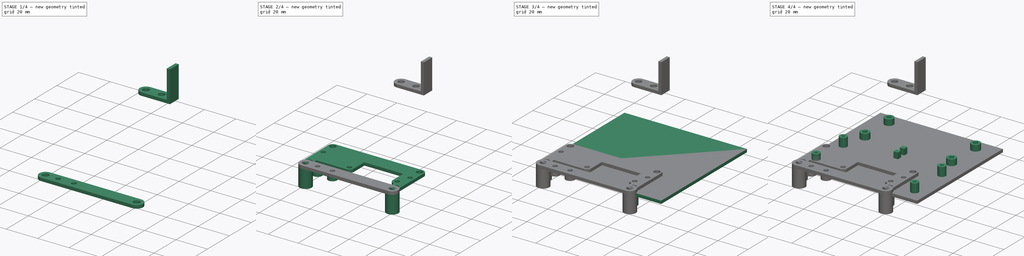
[diagram: build sequence overview — one tinted view per stage of 4, left to right]
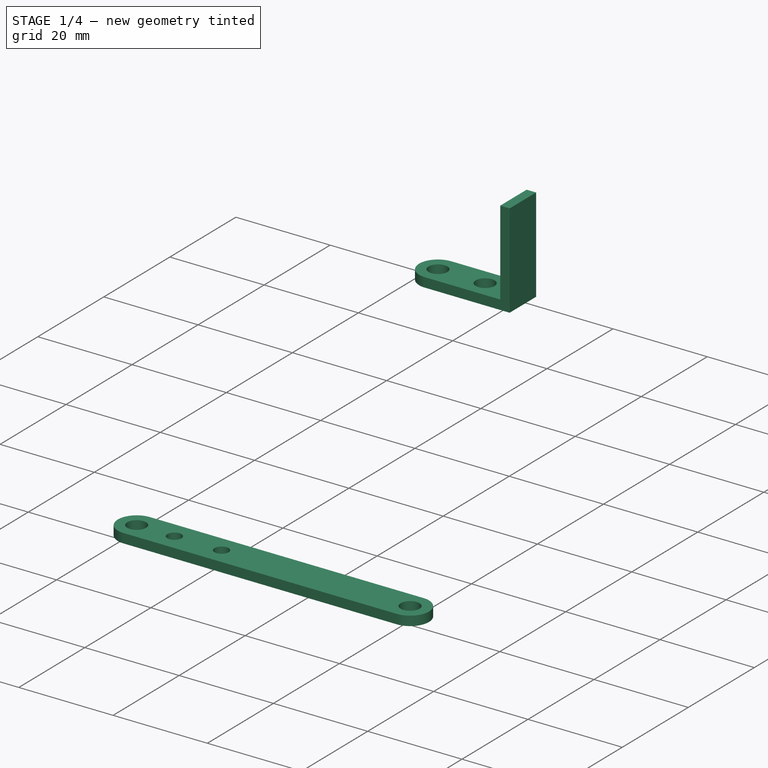
[diagram: stage 1 of 4 — iso view after this stage's code; geometry added in this stage tinted green]
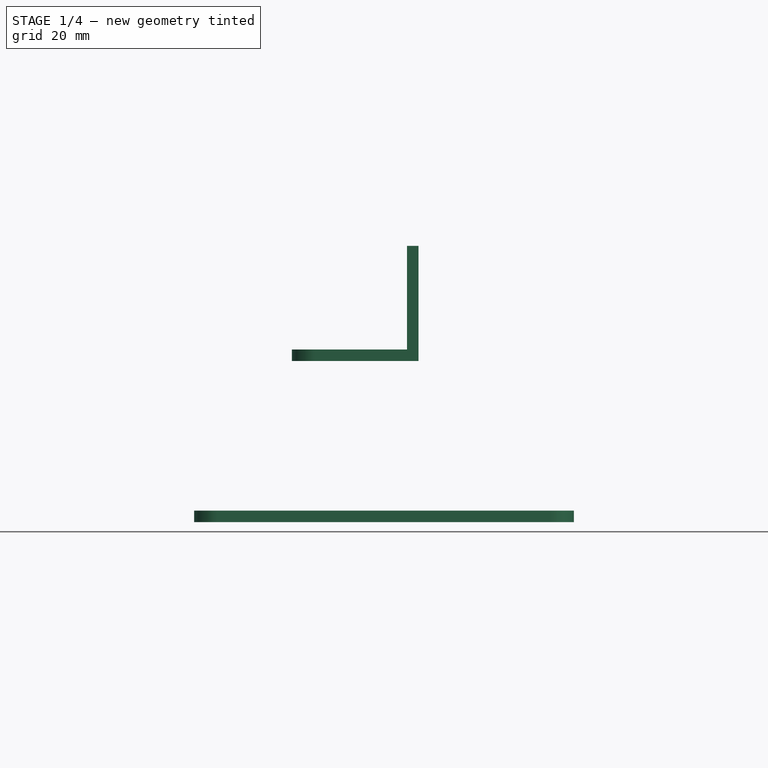
[diagram: stage 1 of 4 — front view after this stage's code; geometry added in this stage tinted green]
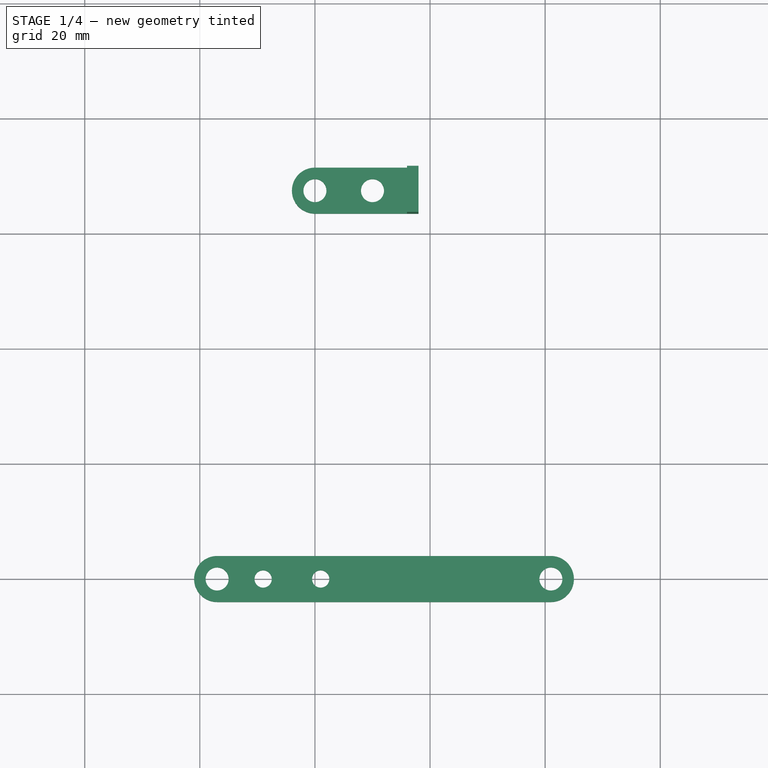
[diagram: stage 1 of 4 — top view after this stage's code; geometry added in this stage tinted green]
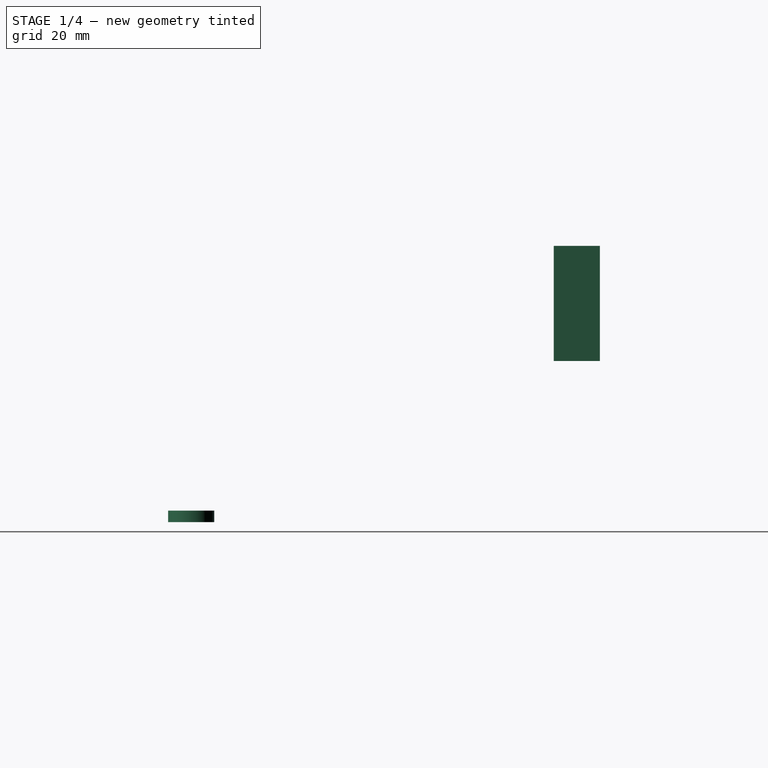
[diagram: stage 1 of 4 — right view after this stage's code; geometry added in this stage tinted green]
FCSTD DOCUMENT  (FreeCAD 1.0R39109 (Git))
Label: Octobox 2W simple
License: All rights reserved
LicenseURL: http://en.wikipedia.org/wiki/All_rights_reserved
objects: Sketcher::SketchObject×13, PartDesign::Pad×13, PartDesign::Body×4
note: 69 computed .brp shape members not serialized (recipe doc carries the construction recipe); baked Part::Feature solids carry a one-line shape summary decoded from their .brp

FEATURE [PartDesign::Body] Body  label="Fan"
  AllowCompound = false
  Group = -> [Sketch,Pad,Sketch019,Pad016,Sketch020,Pad017,Sketch021,Pad018]
  Origin = -> Origin
  Placement = pos=(9,47,12) rot=(0,0,1;0rad)
  Tip = -> Pad018
FEATURE [Sketcher::SketchObject] Sketch022
  ArcFitTolerance = 1e-06
  AttachmentSupport = -> [XY_Plane003]
  FullyConstrained = true
  MakeInternals = false
  MapMode = 5
  sketch-geometry (4):
    g0: Circle CenterX=61 CenterY=0 CenterZ=0 NormalX=0 NormalY=0 NormalZ=1 AngleXU=0 Radius=4
    g1: Circle CenterX=61 CenterY=0 CenterZ=0 NormalX=0 NormalY=0 NormalZ=1 AngleXU=0 Radius=2
    g2: Circle CenterX=3 CenterY=0 CenterZ=0 NormalX=0 NormalY=0 NormalZ=1 AngleXU=0 Radius=4
    g3: Circle CenterX=3 CenterY=0 CenterZ=0 NormalX=0 NormalY=0 NormalZ=1 AngleXU=0 Radius=2
  constraints (10):
    c: Coincident(g1,g0)
    c: Coincident(g3,g2)
    c: Equal(g1,g3)
    c: Equal(g0,g2)
    c: DistanceY(g0,g2) = 0
    c: DistanceX(g2,g0) = 58
    c: DistanceX(g2) = 3
    c: DistanceY(g2) = 0
    c: Radius(g1) = 2
    c: Radius(g0) = 4
FEATURE [Sketcher::SketchObject] Sketch023
  ArcFitTolerance = 1e-06
  AttachmentSupport = -> [XY_Plane003]
  FullyConstrained = true
  MakeInternals = false
  MapMode = 5
  sketch-geometry (8):
    g0: ArcOfCircle CenterX=3 CenterY=0 CenterZ=0 NormalX=0 NormalY=0 NormalZ=1 AngleXU=0 Radius=4 StartAngle=1.5708 EndAngle=4.71239
    g1: ArcOfCircle CenterX=61 CenterY=-2e-16 CenterZ=0 NormalX=0 NormalY=0 NormalZ=1 AngleXU=0 Radius=4 StartAngle=4.71239 EndAngle=7.85398
    g2: LineSegment StartX=3 StartY=4 StartZ=0 EndX=61 EndY=4 EndZ=0
    g3: LineSegment StartX=61 StartY=-4 StartZ=0 EndX=3 EndY=-4 EndZ=0
    g4: Circle CenterX=3 CenterY=0 CenterZ=0 NormalX=0 NormalY=0 NormalZ=1 AngleXU=0 Radius=2
    g5: Circle CenterX=61 CenterY=-2e-16 CenterZ=0 NormalX=0 NormalY=0 NormalZ=1 AngleXU=0 Radius=2
    g6: Circle CenterX=11 CenterY=0 CenterZ=0 NormalX=0 NormalY=0 NormalZ=1 AngleXU=0 Radius=1.5
    g7: Circle CenterX=21 CenterY=0 CenterZ=0 NormalX=0 NormalY=0 NormalZ=1 AngleXU=0 Radius=1.5
  constraints (21):
    c: Horizontal(g2)
    c: Horizontal(g3)
    c: Tangent(g2,g1) = 1.5708
    c: Tangent(g3,g1) = 1.5708
    c: Equal(g1,g0)
    c: Radius(g1) = 4
    c: DistanceX(g0,g1) = 58
    c: Tangent(g2,g0) = 1.5708
    c: Coincident(g3,g0)
    c: DistanceX(g0) = 3
    c: DistanceY(g0) = 0
    c: Coincident(g4,g0)
    c: Coincident(g5,g1)
    c: Equal(g5,g4)
    c: Radius(g5) = 2
    c: PointOnObject(g6,g-1)
    c: PointOnObject(g7,g-1)
    c: Equal(g6,g7)
    c: Radius(g7) = 1.5
    c: DistanceX(g6,g7) = 10
    c: DistanceX(g0,g6) = 8
FEATURE [PartDesign::Pad] Pad020
  Direction = (0,0,1)
  Length = 2
  Length2 = 10
  Profile = -> Sketch023
  ReferenceAxis = -> Sketch023 [N_Axis]
  Suppressed = false
  Type = 0
FEATURE [PartDesign::Body] Body003  label="Xiaomi"
  AllowCompound = false
  Group = -> [Pad020,Sketch022,Pad019,Sketch023,Sketch024,Pad021]
  Origin = -> Origin003
  Placement = pos=(9,64,26) rot=(0,0,1;0rad)
  Tip = -> Pad021
FEATURE [Sketcher::SketchObject] Sketch025
  ArcFitTolerance = 1e-06
  AttachmentOffset = pos=(0,0,28) rot=(0,0,1;0rad)
  AttachmentSupport = -> [XY_Plane004]
  FullyConstrained = true
  MakeInternals = false
  MapMode = 5
  Placement = pos=(0,0,28) rot=(0,0,1;0rad)
  sketch-geometry (6):
    g0: ArcOfCircle CenterX=20 CenterY=67 CenterZ=0 NormalX=0 NormalY=0 NormalZ=1 AngleXU=0 Radius=4 StartAngle=1.5708 EndAngle=4.71239
    g1: LineSegment StartX=20 StartY=71 StartZ=0 EndX=38 EndY=71 EndZ=0
    g2: LineSegment StartX=38 StartY=63 StartZ=0 EndX=20 EndY=63 EndZ=0
    g3: LineSegment StartX=38 StartY=71 StartZ=0 EndX=38 EndY=63 EndZ=0
    g4: Circle CenterX=20 CenterY=67 CenterZ=0 NormalX=0 NormalY=0 NormalZ=1 AngleXU=0 Radius=2
    g5: Circle CenterX=30 CenterY=67 CenterZ=0 NormalX=0 NormalY=0 NormalZ=1 AngleXU=0 Radius=2
  constraints (16):
    c: Horizontal(g1)
    c: Horizontal(g2)
    c: DistanceX(g0) = 20
    c: DistanceY(g0) = 67
    c: Radius(g0) = 4
    c: Tangent(g1,g0) = 1.5708
    c: Tangent(g2,g0) = 1.5708
    c: DistanceX(g-1,g2) = 38
    c: Coincident(g3,g1)
    c: Coincident(g3,g2)
    c: Vertical(g3)
    c: Coincident(g4,g0)
    c: Equal(g4,g5)
    c: Radius(g4) = 2
    c: DistanceY(g5,g0) = 0
    c: DistanceX(g0,g5) = 10
FEATURE [PartDesign::Pad] Pad022
  Direction = (0,0,1)
  Length = 2
  Length2 = 10
  Profile = -> Sketch025
  ReferenceAxis = -> Sketch025 [N_Axis]
  Suppressed = false
  Type = 0
FEATURE [Sketcher::SketchObject] Sketch026
  ArcFitTolerance = 1e-06
  AttachmentOffset = pos=(0,0,-67) rot=(0,0,1;0rad)
  AttachmentSupport = -> [XZ_Plane004]
  FullyConstrained = true
  MakeInternals = false
  MapMode = 5
  Placement = pos=(0,67,-1.49e-14) rot=(1,0,0;1.5708rad)
  sketch-geometry (4):
    g0: LineSegment StartX=38 StartY=30 StartZ=0 EndX=38 EndY=48 EndZ=0
    g1: LineSegment StartX=38 StartY=48 StartZ=0 EndX=36 EndY=48 EndZ=0
    g2: LineSegment StartX=36 StartY=48 StartZ=0 EndX=36 EndY=30 EndZ=0
    g3: LineSegment StartX=36 StartY=30 StartZ=0 EndX=38 EndY=30 EndZ=0
  constraints (12):
    c: Coincident(g0,g1)
    c: Coincident(g1,g2)
    c: Coincident(g2,g3)
    c: Coincident(g3,g0)
    c: Vertical(g0)
    c: Vertical(g2)
    c: Horizontal(g1)
    c: Horizontal(g3)
    c: DistanceX(g1,g1) = 2
    c: DistanceX(g-1,g0) = 38
    c: DistanceY(g0,g0) = 18
    c: DistanceY(g-1,g2) = 30
FEATURE [PartDesign::Pad] Pad023
  BaseFeature = -> Pad022
  Direction = (0,-1,2e-16)
  Length = 8
  Length2 = 10
  Midplane = true
  Profile = -> Sketch026
  ReferenceAxis = -> Sketch026 [N_Axis]
  Suppressed = false
  Type = 0
FEATURE [PartDesign::Body] Body004  label="Post"
  AllowCompound = false
  Group = -> [Sketch025,Pad022,Sketch026,Pad023]
  Origin = -> Origin004
  Placement = pos=(0,-3,0) rot=(0,0,1;0rad)
  Tip = -> Pad023
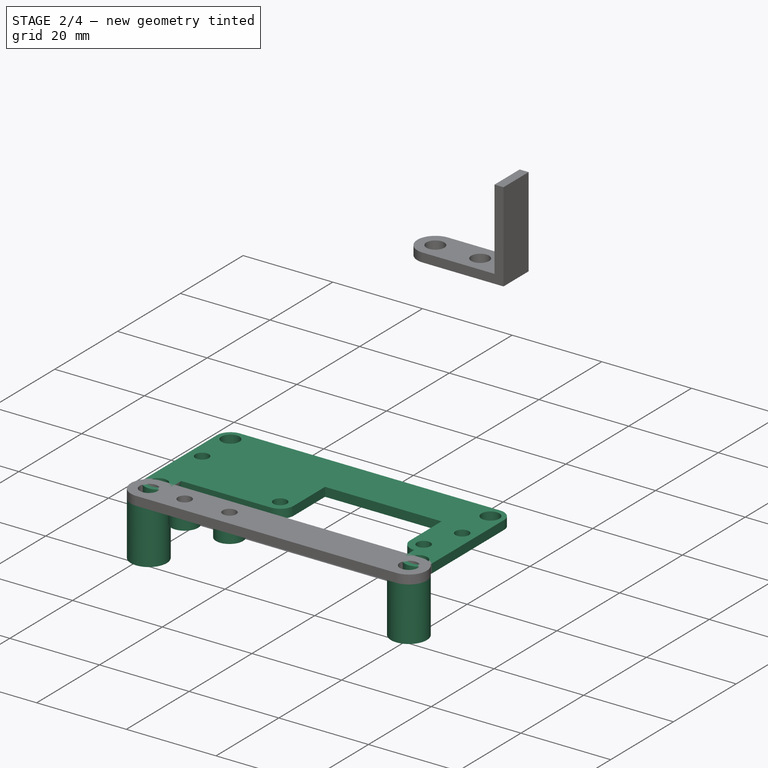
[diagram: stage 2 of 4 — iso view after this stage's code; geometry added in this stage tinted green]
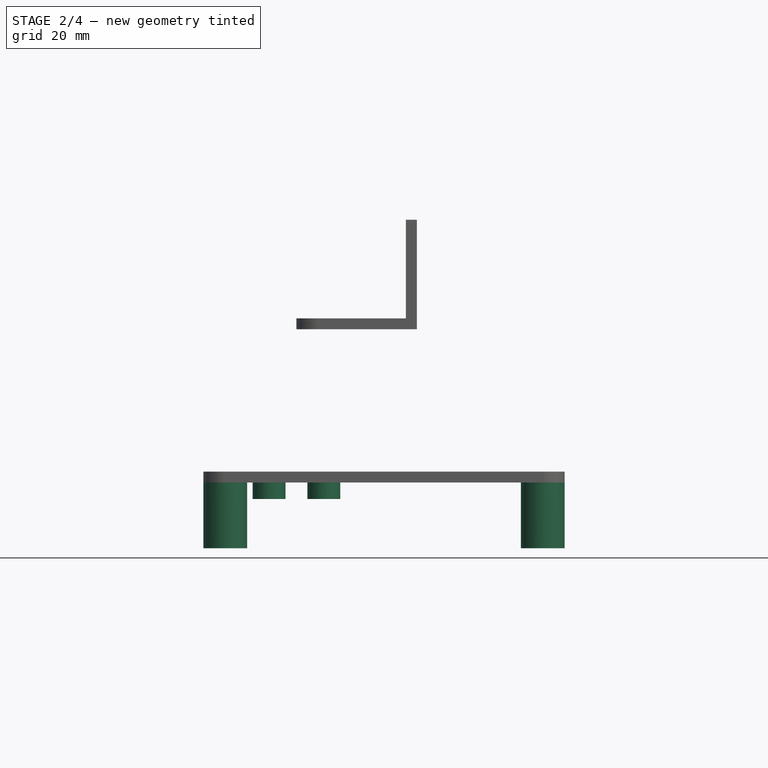
[diagram: stage 2 of 4 — front view after this stage's code; geometry added in this stage tinted green]
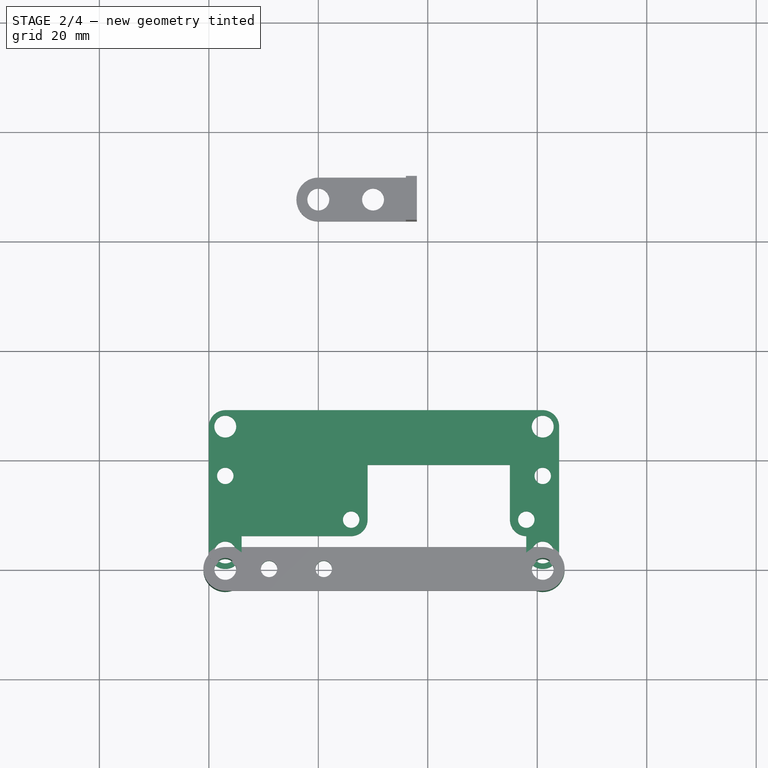
[diagram: stage 2 of 4 — top view after this stage's code; geometry added in this stage tinted green]
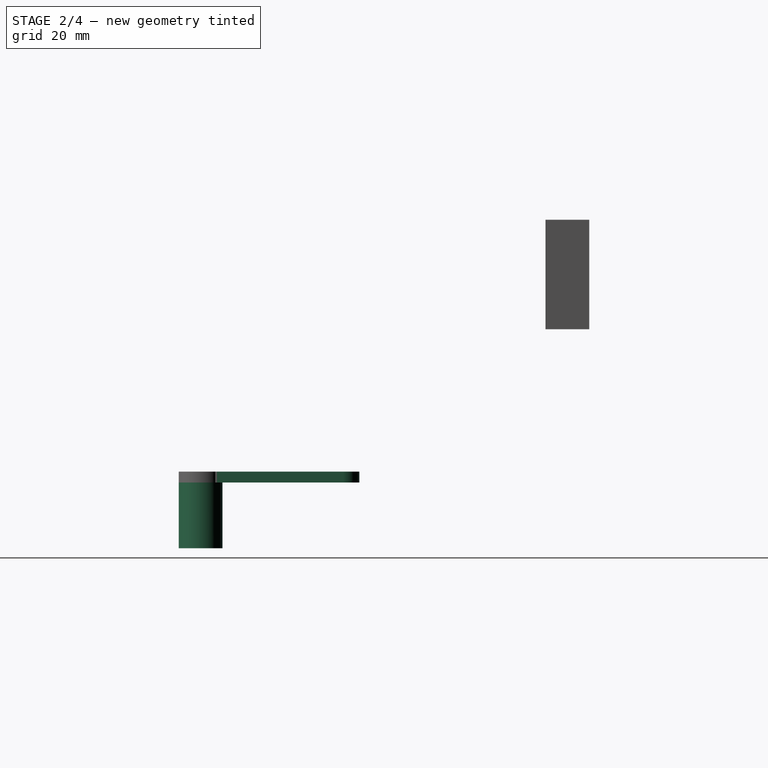
[diagram: stage 2 of 4 — right view after this stage's code; geometry added in this stage tinted green]
FEATURE [PartDesign::Body] Body002  label="Base"
  AllowCompound = false
  Group = -> [Sketch002,Pad002,Sketch003,Pad003,Pad014,Sketch017,Sketch018,Pad015]
  Origin = -> Origin002
  Placement = pos=(0,0,-4) rot=(0,0,1;0rad)
  Tip = -> Pad015
FEATURE [Sketcher::SketchObject] Sketch
  ArcFitTolerance = 1e-06
  AttachmentSupport = -> [XY_Plane]
  FullyConstrained = true
  MakeInternals = false
  MapMode = 5
  sketch-geometry (26):
    g0: LineSegment StartX=0 StartY=26 StartZ=0 EndX=0 EndY=3 EndZ=0
    g1: LineSegment StartX=64 StartY=3 StartZ=0 EndX=64 EndY=26 EndZ=0
    g2: LineSegment StartX=61 StartY=29 StartZ=0 EndX=3 EndY=29 EndZ=0
    g3: ArcOfCircle CenterX=3 CenterY=26 CenterZ=0 NormalX=0 NormalY=0 NormalZ=1 AngleXU=0 Radius=3 StartAngle=1.5708 EndAngle=3.14159
    g4: ArcOfCircle CenterX=3 CenterY=3 CenterZ=0 NormalX=0 NormalY=0 NormalZ=1 AngleXU=0 Radius=3 StartAngle=3.14159 EndAngle=6.28319
    g5: ArcOfCircle CenterX=61 CenterY=3 CenterZ=0 NormalX=0 NormalY=0 NormalZ=1 AngleXU=0 Radius=3 StartAngle=3.14159 EndAngle=6.28319
    g6: ArcOfCircle CenterX=61 CenterY=26 CenterZ=0 NormalX=0 NormalY=0 NormalZ=1 AngleXU=0 Radius=3 StartAngle=1e-16 EndAngle=1.5708
    g7: GeomPoint [constr] X=0 Y=29 Z=0
    g8: Circle CenterX=3 CenterY=3 CenterZ=0 NormalX=0 NormalY=0 NormalZ=1 AngleXU=0 Radius=2
    g9: Circle CenterX=3 CenterY=26 CenterZ=0 NormalX=0 NormalY=0 NormalZ=1 AngleXU=0 Radius=2
    g10: Circle CenterX=61 CenterY=26 CenterZ=0 NormalX=0 NormalY=0 NormalZ=1 AngleXU=0 Radius=2
    g11: Circle CenterX=61 CenterY=3 CenterZ=0 NormalX=0 NormalY=0 NormalZ=1 AngleXU=0 Radius=2
    g12: LineSegment StartX=6 StartY=6 StartZ=0 EndX=6 EndY=3 EndZ=0
    g13: LineSegment StartX=58 StartY=3 StartZ=0 EndX=58 EndY=6 EndZ=0
    g14: LineSegment [constr] StartX=26 StartY=9 StartZ=0 EndX=58 EndY=9 EndZ=0
    g15: Circle CenterX=26 CenterY=9 CenterZ=0 NormalX=0 NormalY=0 NormalZ=1 AngleXU=0 Radius=1.5
    g16: Circle CenterX=58 CenterY=9 CenterZ=0 NormalX=0 NormalY=0 NormalZ=1 AngleXU=0 Radius=1.5
    g17: LineSegment [constr] StartX=3 StartY=3 StartZ=0 EndX=61 EndY=3 EndZ=0
    g18: LineSegment StartX=6 StartY=6 StartZ=0 EndX=26 EndY=6 EndZ=0
    g19: LineSegment StartX=29 StartY=9 StartZ=0 EndX=29 EndY=19 EndZ=0
    g20: LineSegment StartX=29 StartY=19 StartZ=0 EndX=55 EndY=19 EndZ=0
    g21: LineSegment StartX=55 StartY=19 StartZ=0 EndX=55 EndY=9 EndZ=0
    g22: ArcOfCircle CenterX=26 CenterY=9 CenterZ=0 NormalX=0 NormalY=0 NormalZ=1 AngleXU=0 Radius=3 StartAngle=4.71239 EndAngle=6.28319
    g23: ArcOfCircle CenterX=58 CenterY=9 CenterZ=0 NormalX=0 NormalY=0 NormalZ=1 AngleXU=0 Radius=3 StartAngle=3.14159 EndAngle=4.71239
    g24: Circle CenterX=3 CenterY=17 CenterZ=0 NormalX=0 NormalY=0 NormalZ=1 AngleXU=0 Radius=1.5
    g25: Circle CenterX=61 CenterY=17 CenterZ=0 NormalX=0 NormalY=0 NormalZ=1 AngleXU=0 Radius=1.5
  constraints (64):
    c: Tangent(g0,g3) = -1.5708
    c: Tangent(g0,g4) = -1.5708
    c: Tangent(g1,g5) = -1.5708
    c: Tangent(g1,g6) = -1.5708
    c: Tangent(g2,g6) = -1.5708
    c: Tangent(g2,g3) = -1.5708
    c: Vertical(g0)
    c: Vertical(g1)
    c: Horizontal(g2)
    c: Equal(g3,g4)
    c: Equal(g4,g5)
    c: Equal(g5,g6)
    c: PointOnObject(g7,g0)
    c: PointOnObject(g7,g2)
    c: DistanceX(g4,g5) = 58
    c: DistanceY(g5,g6) = 23
    c: Radius(g6) = 3
    c: DistanceX(g4) = 3
    c: DistanceY(g4) = 3
    c: Coincident(g8,g4)
    c: Coincident(g9,g3)
    c: Coincident(g10,g6)
    c: Coincident(g11,g5)
    c: Equal(g10,g11)
    c: Equal(g11,g8)
    c: Equal(g8,g9)
    c: Radius(g10) = 2
    c: Vertical(g12)
    c: Vertical(g13)
    c: Tangent(g13,g5) = 1.5708
    c: Tangent(g12,g4) = 1.5708
    c: DistanceY(g-1,g12) = 6
    c: Horizontal(g14)
    c: DistanceX(g14,g14) = 32
    c: Coincident(g15,g14)
    c: Coincident(g16,g14)
    c: Equal(g16,g15)
    c: Radius(g16) = 1.5
    c: Coincident(g17,g4)
    c: Coincident(g17,g5)
    c: Horizontal(g17)
    c: DistanceY(g14) = 9
    c: Coincident(g18,g12)
    c: Horizontal(g18)
    c: Coincident(g19,g20)
    c: Horizontal(g20)
    c: Coincident(g20,g21)
    c: Vertical(g21)
    c: Vertical(g19)
    c: Coincident(g22,g14)
    c: Coincident(g23,g14)
    c: DistanceY(g13,g12) = 0
    c: DistanceY(g19,g19) = 10
    c: Coincident(g23,g13)
    c: Tangent(g22,g19) = -1.5708
    c: Tangent(g18,g22) = -1.5708
    c: Tangent(g21,g23) = -1.5708
    c: Equal(g23,g22)
    c: DistanceX(g3,g24) = 0
    c: DistanceX(g6,g25) = 0
    c: DistanceY(g24,g25) = 0
    c: Equal(g24,g25)
    c: Radius(g25) = 1.5
    c: DistanceY(g-1,g24) = 17
FEATURE [PartDesign::Pad] Pad
  Direction = (0,0,1)
  Length = 2
  Length2 = 10
  Profile = -> Sketch
  ReferenceAxis = -> Sketch [N_Axis]
  Suppressed = false
  Type = 0
FEATURE [PartDesign::Pad] Pad019
  BaseFeature = -> Pad020
  Direction = (0,0,1)
  Length = 12
  Length2 = 10
  Profile = -> Sketch022
  ReferenceAxis = -> Sketch022 [N_Axis]
  Reversed = true
  Suppressed = false
  Type = 0
FEATURE [Sketcher::SketchObject] Sketch024
  ArcFitTolerance = 1e-06
  AttachmentSupport = -> [XY_Plane003]
  FullyConstrained = true
  MakeInternals = false
  MapMode = 5
  sketch-geometry (4):
    g0: Circle CenterX=11 CenterY=0 CenterZ=0 NormalX=0 NormalY=0 NormalZ=1 AngleXU=0 Radius=3
    g1: Circle CenterX=21 CenterY=0 CenterZ=0 NormalX=0 NormalY=0 NormalZ=1 AngleXU=0 Radius=3
    g2: Circle CenterX=11 CenterY=0 CenterZ=0 NormalX=0 NormalY=0 NormalZ=1 AngleXU=0 Radius=1.5
    g3: Circle CenterX=21 CenterY=0 CenterZ=0 NormalX=0 NormalY=0 NormalZ=1 AngleXU=0 Radius=1.5
  constraints (10):
    c: PointOnObject(g0,g-1)
    c: PointOnObject(g1,g-1)
    c: Coincident(g2,g0)
    c: Coincident(g3,g1)
    c: Equal(g0,g1)
    c: Equal(g2,g3)
    c: Radius(g3) = 1.5
    c: Radius(g0) = 3
    c: DistanceX(g0,g1) = 10
    c: DistanceX(g-1,g0) = 11
FEATURE [PartDesign::Pad] Pad021
  BaseFeature = -> Pad019
  Direction = (0,0,1)
  Length = 3
  Length2 = 10
  Profile = -> Sketch024
  ReferenceAxis = -> Sketch024 [N_Axis]
  Reversed = true
  Suppressed = false
  Type = 0
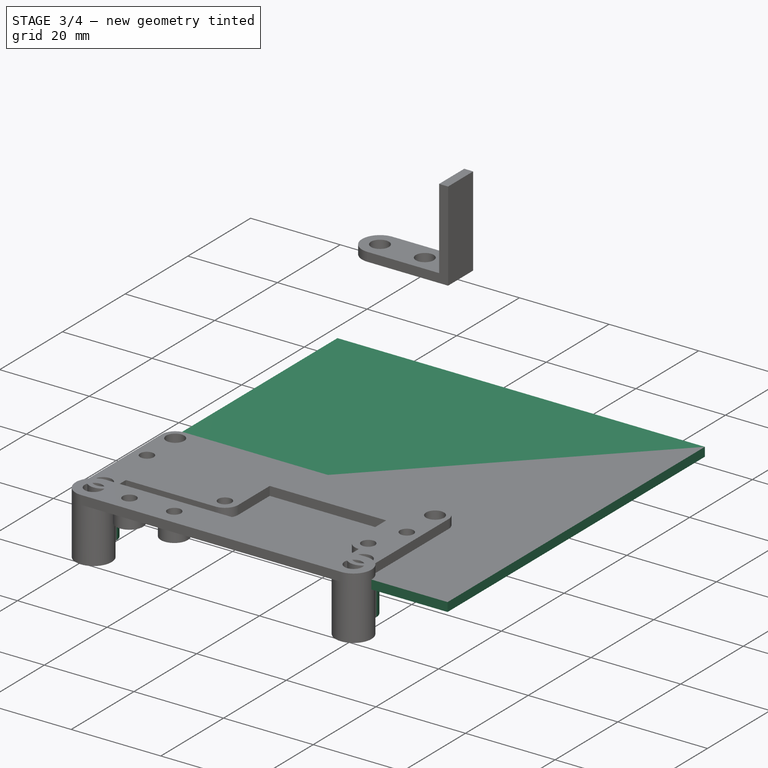
[diagram: stage 3 of 4 — iso view after this stage's code; geometry added in this stage tinted green]
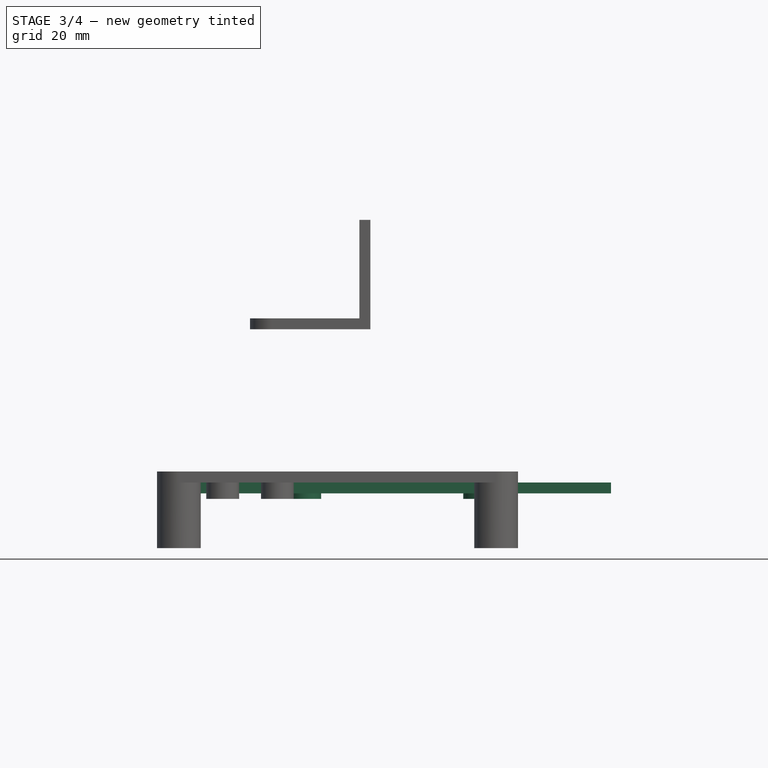
[diagram: stage 3 of 4 — front view after this stage's code; geometry added in this stage tinted green]
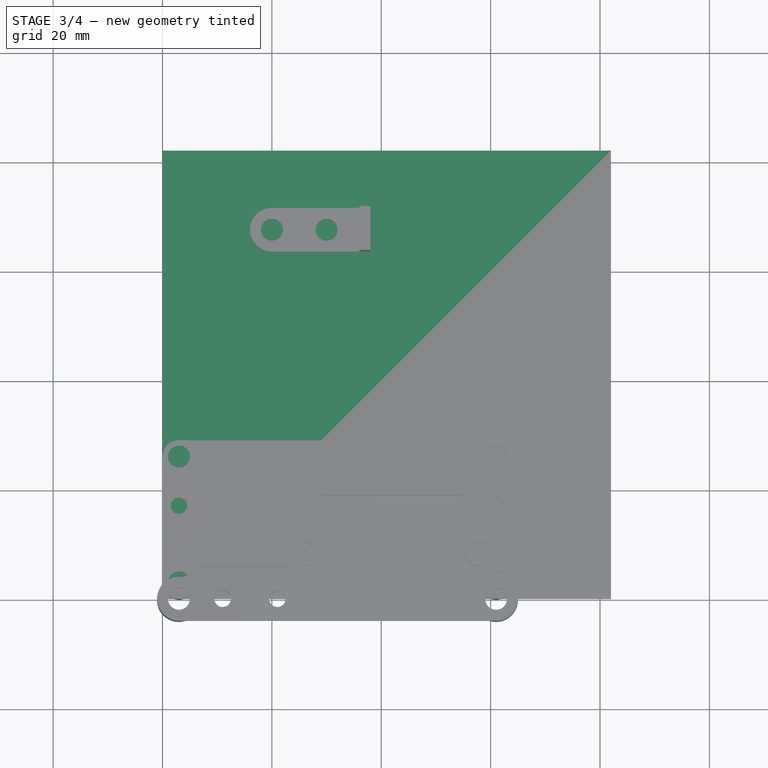
[diagram: stage 3 of 4 — top view after this stage's code; geometry added in this stage tinted green]
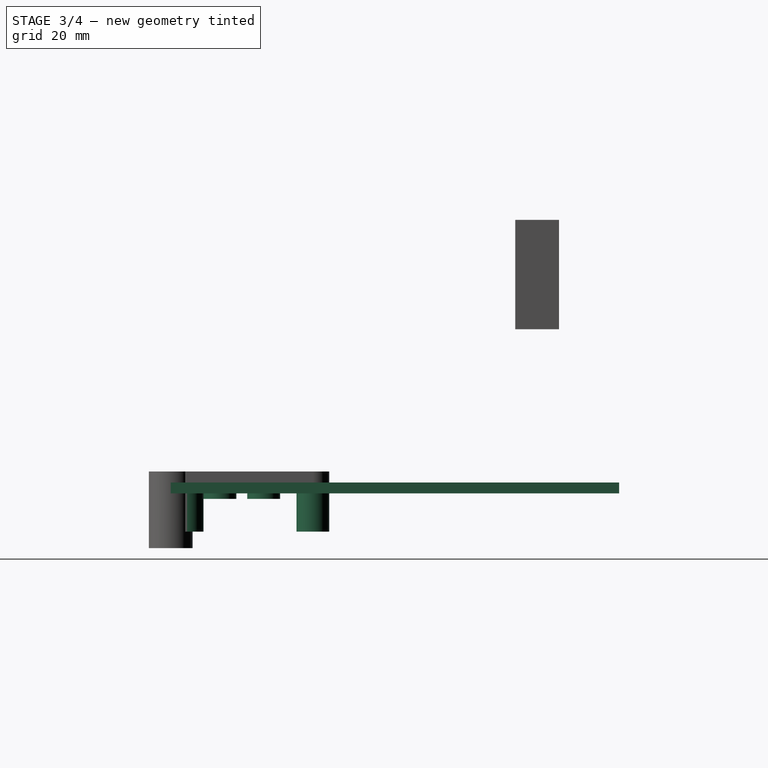
[diagram: stage 3 of 4 — right view after this stage's code; geometry added in this stage tinted green]
FEATURE [Sketcher::SketchObject] Sketch002
  ArcFitTolerance = 0
  AttachmentSupport = -> [XY_Plane002]
  FullyConstrained = true
  MakeInternals = false
  MapMode = 5
  sketch-geometry (4):
    g0: LineSegment StartX=0 StartY=82 StartZ=0 EndX=82 EndY=82 EndZ=0
    g1: LineSegment StartX=82 StartY=82 StartZ=0 EndX=82 EndY=0 EndZ=0
    g2: LineSegment StartX=82 StartY=0 StartZ=0 EndX=0 EndY=0 EndZ=0
    g3: LineSegment StartX=0 StartY=0 StartZ=0 EndX=0 EndY=82 EndZ=0
  constraints (12):
    c: Coincident(g0,g1)
    c: Coincident(g1,g2)
    c: Coincident(g2,g3)
    c: Coincident(g3,g0)
    c: Horizontal(g0)
    c: Horizontal(g2)
    c: Vertical(g1)
    c: Vertical(g3)
    c: DistanceX(g2) = 0
    c: DistanceY(g2) = 0
    c: DistanceX(g2,g2) = 82
    c: DistanceY(g1,g1) = 82
FEATURE [PartDesign::Pad] Pad002
  Direction = (0,0,1)
  Length = 2
  Length2 = 10
  Profile = -> Sketch002
  ReferenceAxis = -> Sketch002 [N_Axis]
  Reversed = true
  Suppressed = false
  Type = 0
FEATURE [Sketcher::SketchObject] Sketch019
  ArcFitTolerance = 1e-06
  AttachmentSupport = -> [XY_Plane]
  FullyConstrained = true
  MakeInternals = false
  MapMode = 5
  sketch-geometry (9):
    g0: LineSegment [constr] StartX=26 StartY=9 StartZ=0 EndX=58 EndY=9 EndZ=0
    g1: Circle CenterX=26 CenterY=9 CenterZ=0 NormalX=0 NormalY=0 NormalZ=1 AngleXU=0 Radius=1.5
    g2: Circle CenterX=58 CenterY=9 CenterZ=0 NormalX=0 NormalY=0 NormalZ=1 AngleXU=0 Radius=1.5
    g3: Circle CenterX=26 CenterY=9 CenterZ=0 NormalX=0 NormalY=0 NormalZ=1 AngleXU=0 Radius=3
    g4: Circle CenterX=58 CenterY=9 CenterZ=0 NormalX=0 NormalY=0 NormalZ=1 AngleXU=0 Radius=3
    g5: Circle CenterX=3 CenterY=17 CenterZ=0 NormalX=0 NormalY=0 NormalZ=1 AngleXU=0 Radius=3
    g6: Circle CenterX=61 CenterY=17 CenterZ=0 NormalX=0 NormalY=0 NormalZ=1 AngleXU=0 Radius=3
    g7: Circle CenterX=61 CenterY=17 CenterZ=0 NormalX=0 NormalY=0 NormalZ=1 AngleXU=0 Radius=1.5
    g8: Circle CenterX=3 CenterY=17 CenterZ=0 NormalX=0 NormalY=0 NormalZ=1 AngleXU=0 Radius=1.5
  constraints (22):
    c: Horizontal(g0)
    c: Coincident(g1,g0)
    c: Coincident(g2,g0)
    c: Equal(g1,g2)
    c: Radius(g2) = 1.5
    c: DistanceX(g0,g0) = 32
    c: DistanceX(g0) = 26
    c: DistanceY(g0) = 9
    c: Coincident(g3,g0)
    c: Coincident(g4,g0)
    c: Equal(g4,g3)
    c: Radius(g4) = 3
    c: Coincident(g7,g6)
    c: Coincident(g8,g5)
    c: DistanceY(g6,g5) = 0
    c: DistanceY(g-1,g5) = 17
    c: DistanceX(g-1,g5) = 3
    c: DistanceX(g5,g6) = 58
    c: Equal(g8,g7)
    c: Equal(g5,g6)
    c: Radius(g8) = 1.5
    c: Radius(g5) = 3
FEATURE [PartDesign::Pad] Pad016
  BaseFeature = -> Pad
  Direction = (0,0,1)
  Length = 3
  Length2 = 10
  Profile = -> Sketch019
  ReferenceAxis = -> Sketch019 [N_Axis]
  Reversed = true
  Suppressed = false
  Type = 0
FEATURE [Sketcher::SketchObject] Sketch020
  ArcFitTolerance = 1e-06
  AttachmentSupport = -> [XY_Plane]
  FullyConstrained = true
  MakeInternals = false
  MapMode = 5
  sketch-geometry (12):
    g0: LineSegment [constr] StartX=3 StartY=26 StartZ=0 EndX=3 EndY=3 EndZ=0
    g1: LineSegment [constr] StartX=3 StartY=3 StartZ=0 EndX=61 EndY=3 EndZ=0
    g2: LineSegment [constr] StartX=61 StartY=3 StartZ=0 EndX=61 EndY=26 EndZ=0
    g3: LineSegment [constr] StartX=61 StartY=26 StartZ=0 EndX=3 EndY=26 EndZ=0
    g4: Circle CenterX=3 CenterY=26 CenterZ=0 NormalX=0 NormalY=0 NormalZ=1 AngleXU=0 Radius=3
    g5: Circle CenterX=3 CenterY=26 CenterZ=0 NormalX=0 NormalY=0 NormalZ=1 AngleXU=0 Radius=2
    g6: Circle CenterX=61 CenterY=26 CenterZ=0 NormalX=0 NormalY=0 NormalZ=1 AngleXU=0 Radius=3
    g7: Circle CenterX=61 CenterY=26 CenterZ=0 NormalX=0 NormalY=0 NormalZ=1 AngleXU=0 Radius=2
    g8: Circle CenterX=3 CenterY=3 CenterZ=0 NormalX=0 NormalY=0 NormalZ=1 AngleXU=0 Radius=3
    g9: Circle CenterX=3 CenterY=3 CenterZ=0 NormalX=0 NormalY=0 NormalZ=1 AngleXU=0 Radius=2
    g10: Circle CenterX=61 CenterY=3 CenterZ=0 NormalX=0 NormalY=0 NormalZ=1 AngleXU=0 Radius=3
    g11: Circle CenterX=61 CenterY=3 CenterZ=0 NormalX=0 NormalY=0 NormalZ=1 AngleXU=0 Radius=2
  constraints (28):
    c: Coincident(g0,g1)
    c: Coincident(g1,g2)
    c: Coincident(g2,g3)
    c: Coincident(g3,g0)
    c: Vertical(g0)
    c: Vertical(g2)
    c: Horizontal(g1)
    c: Horizontal(g3)
    c: DistanceX(g3,g3) = 58
    c: DistanceY(g0,g0) = 23
    c: DistanceX(g0) = 3
    c: DistanceY(g0) = 3
    c: Coincident(g4,g0)
    c: Coincident(g5,g0)
    c: Coincident(g6,g2)
    c: Coincident(g7,g2)
    c: Coincident(g8,g0)
    c: Coincident(g9,g0)
    c: Coincident(g10,g1)
    c: Coincident(g11,g1)
    c: Equal(g11,g7)
    c: Equal(g7,g5)
    c: Equal(g5,g9)
    c: Radius(g7) = 2
    c: Equal(g6,g4)
    c: Equal(g4,g8)
    c: Equal(g8,g10)
    c: Radius(g6) = 3
FEATURE [PartDesign::Pad] Pad017
  BaseFeature = -> Pad016
  Direction = (0,0,1)
  Length = 9
  Length2 = 10
  Profile = -> Sketch020
  ReferenceAxis = -> Sketch020 [N_Axis]
  Reversed = true
  Suppressed = false
  Type = 0
FEATURE [Sketcher::SketchObject] Sketch021
  ArcFitTolerance = 1e-06
  AttachmentSupport = -> [XY_Plane]
  FullyConstrained = true
  MakeInternals = false
  MapMode = 5
  sketch-geometry (21):
    g0: LineSegment [constr] StartX=3 StartY=26 StartZ=0 EndX=61 EndY=26 EndZ=0
    g1: ArcOfCircle CenterX=3 CenterY=26 CenterZ=0 NormalX=0 NormalY=0 NormalZ=1 AngleXU=0 Radius=3 StartAngle=1.5708 EndAngle=3.14159
    g2: ArcOfCircle CenterX=61 CenterY=26 CenterZ=0 NormalX=0 NormalY=0 NormalZ=1 AngleXU=0 Radius=3 StartAngle=-4.867e-13 EndAngle=1.5708
    g3: LineSegment StartX=61 StartY=29 StartZ=0 EndX=3 EndY=29 EndZ=0
    g4: Circle CenterX=3 CenterY=26 CenterZ=0 NormalX=0 NormalY=0 NormalZ=1 AngleXU=0 Radius=2
    g5: Circle CenterX=61 CenterY=26 CenterZ=0 NormalX=0 NormalY=0 NormalZ=1 AngleXU=0 Radius=2
    g6: ArcOfCircle CenterX=3 CenterY=3 CenterZ=0 NormalX=0 NormalY=0 NormalZ=1 AngleXU=0 Radius=3 StartAngle=3.14159 EndAngle=7.85398
    g7: ArcOfCircle CenterX=61 CenterY=3 CenterZ=0 NormalX=0 NormalY=0 NormalZ=1 AngleXU=0 Radius=3 StartAngle=1.5708 EndAngle=6.28319
    g8: LineSegment StartX=6 StartY=23 StartZ=0 EndX=58 EndY=23 EndZ=0
    g9: LineSegment StartX=0 StartY=26 StartZ=0 EndX=0 EndY=3 EndZ=0
    g10: LineSegment StartX=64 StartY=26 StartZ=0 EndX=64 EndY=3 EndZ=0
    g11: Circle CenterX=3 CenterY=3 CenterZ=0 NormalX=0 NormalY=0 NormalZ=1 AngleXU=0 Radius=2
    g12: Circle CenterX=61 CenterY=3 CenterZ=0 NormalX=0 NormalY=0 NormalZ=1 AngleXU=0 Radius=2
    g13: LineSegment StartX=3 StartY=14 StartZ=0 EndX=3 EndY=6 EndZ=0
    g14: LineSegment StartX=61 StartY=6 StartZ=0 EndX=61 EndY=14 EndZ=0
    g15: Circle CenterX=3 CenterY=17 CenterZ=0 NormalX=0 NormalY=0 NormalZ=1 AngleXU=0 Radius=1.5
    g16: Circle CenterX=61 CenterY=17 CenterZ=0 NormalX=0 NormalY=0 NormalZ=1 AngleXU=0 Radius=1.5
    g17: ArcOfCircle CenterX=3 CenterY=17 CenterZ=0 NormalX=0 NormalY=0 NormalZ=1 AngleXU=0 Radius=3 StartAngle=4.71239 EndAngle=6.28319
    g18: ArcOfCircle CenterX=61 CenterY=17 CenterZ=0 NormalX=0 NormalY=0 NormalZ=1 AngleXU=0 Radius=3 StartAngle=3.14159 EndAngle=4.71239
    g19: LineSegment StartX=58 StartY=23 StartZ=0 EndX=58 EndY=17 EndZ=0
    g20: LineSegment StartX=6 StartY=17 StartZ=0 EndX=6 EndY=23 EndZ=0
  constraints (54):
    c: Horizontal(g0)
    c: Coincident(g1,g0)
    c: Coincident(g2,g0)
    c: Horizontal(g3)
    c: DistanceX(g0,g0) = 58
    c: Radius(g1) = 3
    c: DistanceX(g0) = 3
    c: DistanceY(g0) = 26
    c: Coincident(g4,g0)
    c: Coincident(g5,g0)
    c: Equal(g4,g5)
    c: Radius(g4) = 2
    c: Horizontal(g8)
    c: Vertical(g9)
    c: Vertical(g10)
    c: Equal(g6,g7)
    c: Equal(g7,g2)
    c: DistanceY(g7,g6) = 0
    c: Tangent(g9,g6) = -1.5708
    c: Tangent(g10,g7) = 1.5708
    c: Tangent(g3,g1) = -1.5708
    c: Tangent(g10,g2) = 1.5708
    c: Tangent(g9,g1) = -1.5708
    c: DistanceY(g6,g0) = 23
    c: DistanceY(g8,g0) = 3
    c: Coincident(g11,g6)
    c: Coincident(g12,g7)
    c: Equal(g11,g12)
    c: Equal(g12,g5)
    c: Tangent(g3,g2) = -1.5708
    c: Coincident(g13,g6)
    c: Coincident(g14,g7)
    c: Vertical(g13)
    c: Vertical(g14)
    c: DistanceX(g6,g6) = 0
    c: DistanceX(g7,g7) = 0
    c: DistanceY(g16,g15) = 0
    c: Equal(g15,g16)
    c: Radius(g16) = 1.5
    c: DistanceX(g15,g0) = 0
    c: DistanceX(g0,g16) = 0
    c: DistanceY(g16,g0) = 9
    c: Coincident(g17,g15)
    c: Coincident(g17,g13)
    c: Coincident(g18,g16)
    c: Coincident(g18,g14)
    c: Equal(g17,g18)
    c: Equal(g18,g2)
    c: Coincident(g19,g8)
    c: Coincident(g20,g8)
    c: Vertical(g20)
    c: Vertical(g19)
    c: Tangent(g20,g17) = -1.5708
    c: Tangent(g19,g18) = -1.5708
FEATURE [PartDesign::Pad] Pad018
  BaseFeature = -> Pad017
  Direction = (0,0,1)
  Length = 2
  Length2 = 10
  Profile = -> Sketch021
  ReferenceAxis = -> Sketch021 [N_Axis]
  Reversed = true
  Suppressed = false
  Type = 0
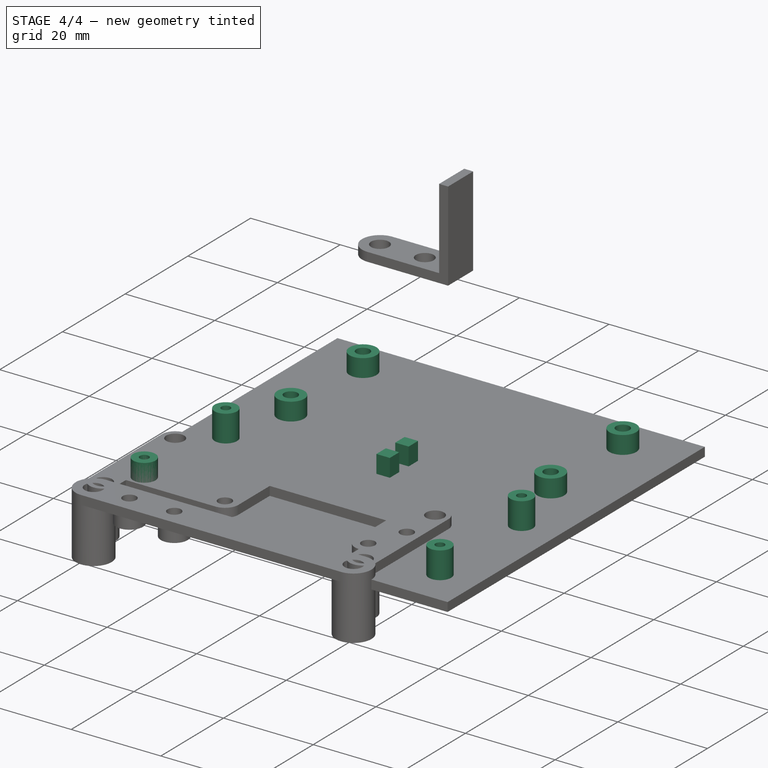
[diagram: stage 4 of 4 — iso view after this stage's code; geometry added in this stage tinted green]
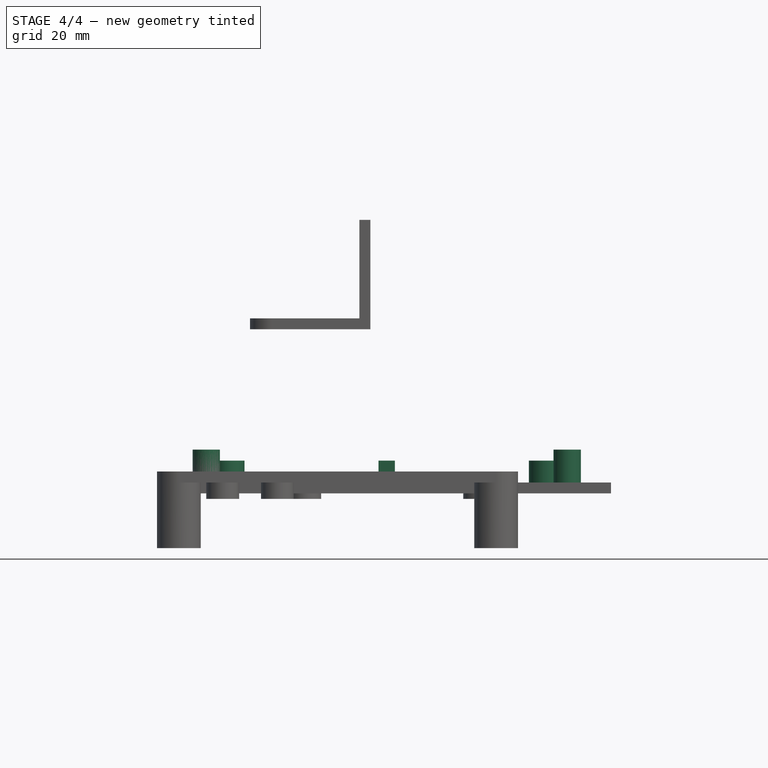
[diagram: stage 4 of 4 — front view after this stage's code; geometry added in this stage tinted green]
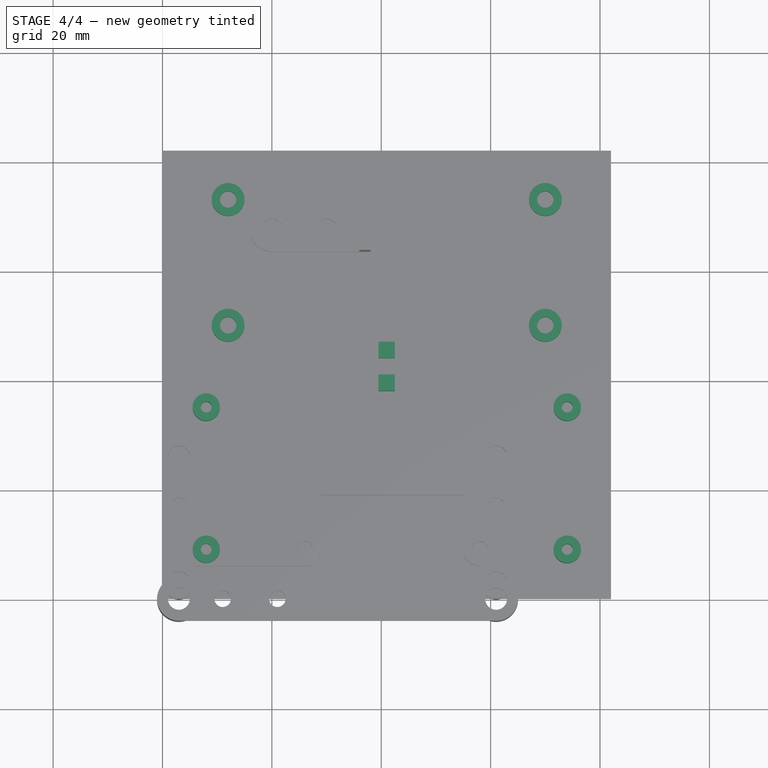
[diagram: stage 4 of 4 — top view after this stage's code; geometry added in this stage tinted green]
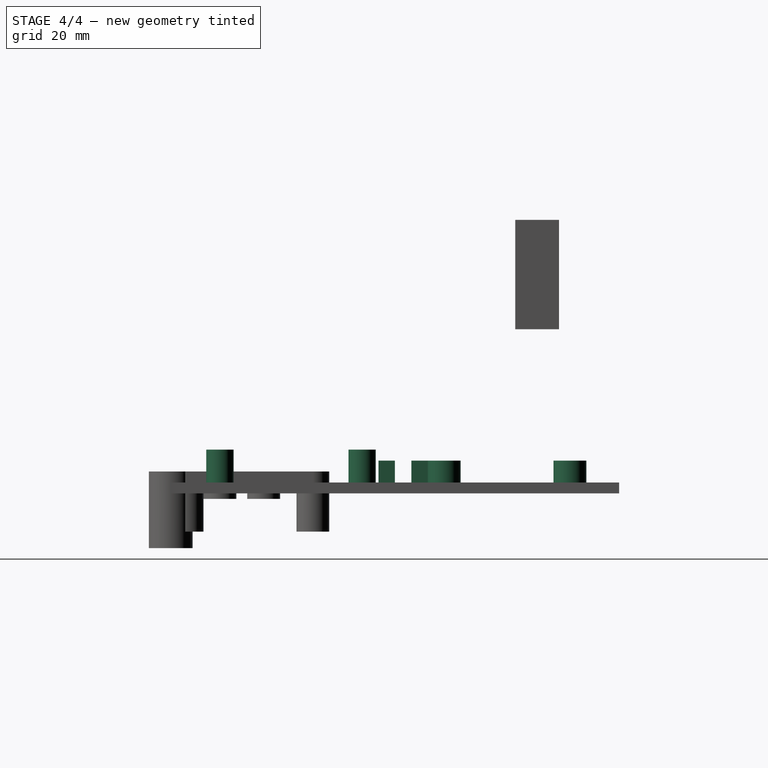
[diagram: stage 4 of 4 — right view after this stage's code; geometry added in this stage tinted green]
FEATURE [Sketcher::SketchObject] Sketch003
  ArcFitTolerance = 0
  AttachmentSupport = -> [XY_Plane002]
  FullyConstrained = true
  MakeInternals = false
  MapMode = 5
  sketch-geometry (21):
    g0: LineSegment [constr] StartX=12 StartY=73 StartZ=0 EndX=70 EndY=73 EndZ=0
    g1: LineSegment [constr] StartX=70 StartY=73 StartZ=0 EndX=70 EndY=50 EndZ=0
    g2: LineSegment [constr] StartX=70 StartY=50 StartZ=0 EndX=12 EndY=50 EndZ=0
    g3: LineSegment [constr] StartX=12 StartY=50 StartZ=0 EndX=12 EndY=73 EndZ=0
    g4: Circle CenterX=12 CenterY=73 CenterZ=0 NormalX=0 NormalY=0 NormalZ=1 AngleXU=0 Radius=3
    g5: Circle CenterX=70 CenterY=73 CenterZ=0 NormalX=0 NormalY=0 NormalZ=1 AngleXU=0 Radius=3
    g6: Circle CenterX=70 CenterY=50 CenterZ=0 NormalX=0 NormalY=0 NormalZ=1 AngleXU=0 Radius=3
    g7: Circle CenterX=12 CenterY=50 CenterZ=0 NormalX=0 NormalY=0 NormalZ=1 AngleXU=0 Radius=3
    g8: LineSegment [constr] StartX=82 StartY=82 StartZ=0 EndX=0 EndY=82 EndZ=0
    g9: LineSegment [constr] StartX=0 StartY=82 StartZ=0 EndX=0 EndY=0 EndZ=0
    g10: LineSegment [constr] StartX=0 StartY=0 StartZ=0 EndX=82 EndY=0 EndZ=0
    g11: LineSegment [constr] StartX=82 StartY=0 StartZ=0 EndX=82 EndY=82 EndZ=0
    g12: LineSegment [constr] StartX=12 StartY=73 StartZ=0 EndX=0 EndY=82 EndZ=0
    g13: LineSegment [constr] StartX=70 StartY=73 StartZ=0 EndX=82 EndY=82 EndZ=0
    g14: LineSegment [constr] StartX=41 StartY=35 StartZ=0 EndX=41 EndY=9 EndZ=0
    g15: Circle [constr] CenterX=41 CenterY=9 CenterZ=0 NormalX=0 NormalY=0 NormalZ=1 AngleXU=0 Radius=9
    g16: Circle [constr] CenterX=70 CenterY=73 CenterZ=0 NormalX=0 NormalY=0 NormalZ=1 AngleXU=0 Radius=9
    g17: Circle CenterX=12 CenterY=73 CenterZ=0 NormalX=0 NormalY=0 NormalZ=1 AngleXU=0 Radius=1.5
    g18: Circle CenterX=70 CenterY=73 CenterZ=0 NormalX=0 NormalY=0 NormalZ=1 AngleXU=0 Radius=1.5
    g19: Circle CenterX=12 CenterY=50 CenterZ=0 NormalX=0 NormalY=0 NormalZ=1 AngleXU=0 Radius=1.5
    g20: Circle CenterX=70 CenterY=50 CenterZ=0 NormalX=0 NormalY=0 NormalZ=1 AngleXU=0 Radius=1.5
  constraints (52):
    c: Coincident(g0,g1)
    c: Coincident(g1,g2)
    c: Coincident(g2,g3)
    c: Coincident(g3,g0)
    c: Horizontal(g0)
    c: Horizontal(g2)
    c: Vertical(g1)
    c: Vertical(g3)
    c: DistanceX(g0,g0) = 58
    c: DistanceY(g3,g3) = 23
    c: Coincident(g4,g0)
    c: Coincident(g5,g0)
    c: Coincident(g6,g1)
    c: Coincident(g7,g2)
    c: Equal(g4,g5)
    c: Equal(g5,g6)
    c: Equal(g6,g7)
    c: Radius(g5) = 3
    c: Coincident(g8,g9)
    c: Coincident(g9,g10)
    c: Coincident(g10,g11)
    c: Coincident(g11,g8)
    c: Horizontal(g8)
    c: Horizontal(g10)
    c: Vertical(g9)
    c: Vertical(g11)
    c: DistanceX(g10,g10) = 82
    c: DistanceY(g11,g11) = 82
    c: DistanceX(g9) = 0
    c: DistanceY(g9) = 0
    c: Coincident(g12,g0)
    c: Coincident(g12,g8)
    c: Coincident(g13,g0)
    c: Coincident(g13,g8)
    c: Equal(g13,g12)
    c: Vertical(g14)
    c: DistanceY(g14,g14) = 26
    c: Coincident(g15,g14)
    c: Tangent(g15,g10)
    c: Coincident(g16,g0)
    c: Tangent(g16,g8)
    c: Equal(g16,g15)
    c: DistanceY(g14,g1) = 15
    c: DistanceX(g9,g14) = 41
    c: Coincident(g17,g0)
    c: Coincident(g18,g0)
    c: Coincident(g19,g2)
    c: Coincident(g20,g1)
    c: Equal(g18,g20)
    c: Equal(g20,g19)
    c: Equal(g19,g17)
    c: Radius(g17) = 1.5
FEATURE [PartDesign::Pad] Pad003
  BaseFeature = -> Pad002
  Direction = (0,0,1)
  Length = 4
  Length2 = 10
  Profile = -> Sketch003
  ReferenceAxis = -> Sketch003 [N_Axis]
  Suppressed = false
  Type = 0
FEATURE [Sketcher::SketchObject] Sketch017
  ArcFitTolerance = 0
  AttachmentSupport = -> [XY_Plane002]
  FullyConstrained = true
  MakeInternals = false
  MapMode = 5
  sketch-geometry (21):
    g0: LineSegment [constr] StartX=8 StartY=35 StartZ=0 EndX=74 EndY=35 EndZ=0
    g1: LineSegment [constr] StartX=74 StartY=35 StartZ=0 EndX=74 EndY=9 EndZ=0
    g2: LineSegment [constr] StartX=74 StartY=9 StartZ=0 EndX=8 EndY=9 EndZ=0
    g3: LineSegment [constr] StartX=8 StartY=9 StartZ=0 EndX=8 EndY=35 EndZ=0
    g4: Circle CenterX=8 CenterY=9 CenterZ=0 NormalX=0 NormalY=0 NormalZ=1 AngleXU=0 Radius=2.5
    g5: Circle CenterX=74 CenterY=9 CenterZ=0 NormalX=0 NormalY=0 NormalZ=1 AngleXU=0 Radius=2.5
    g6: Circle CenterX=74 CenterY=35 CenterZ=0 NormalX=0 NormalY=0 NormalZ=1 AngleXU=0 Radius=2.5
    g7: Circle CenterX=8 CenterY=35 CenterZ=0 NormalX=0 NormalY=0 NormalZ=1 AngleXU=0 Radius=2.5
    g8: LineSegment [constr] StartX=0 StartY=82 StartZ=0 EndX=0 EndY=0 EndZ=0
    g9: LineSegment [constr] StartX=0 StartY=0 StartZ=0 EndX=82 EndY=0 EndZ=0
    g10: LineSegment [constr] StartX=82 StartY=0 StartZ=0 EndX=82 EndY=82 EndZ=0
    g11: LineSegment [constr] StartX=82 StartY=82 StartZ=0 EndX=0 EndY=82 EndZ=0
    g12: LineSegment [constr] StartX=8 StartY=9 StartZ=0 EndX=0 EndY=0 EndZ=0
    g13: LineSegment [constr] StartX=74 StartY=9 StartZ=0 EndX=82 EndY=0 EndZ=0
    g14: LineSegment [constr] StartX=41 StartY=73 StartZ=0 EndX=41 EndY=50 EndZ=0
    g15: Circle [constr] CenterX=41 CenterY=73 CenterZ=0 NormalX=0 NormalY=0 NormalZ=1 AngleXU=0 Radius=9
    g16: Circle [constr] CenterX=74 CenterY=9 CenterZ=0 NormalX=0 NormalY=0 NormalZ=1 AngleXU=0 Radius=9
    g17: Circle CenterX=8 CenterY=35 CenterZ=0 NormalX=0 NormalY=0 NormalZ=1 AngleXU=0 Radius=1
    g18: Circle CenterX=74 CenterY=35 CenterZ=0 NormalX=0 NormalY=0 NormalZ=1 AngleXU=0 Radius=1
    g19: Circle CenterX=74 CenterY=9 CenterZ=0 NormalX=0 NormalY=0 NormalZ=1 AngleXU=0 Radius=1
    g20: Circle CenterX=8 CenterY=9 CenterZ=0 NormalX=0 NormalY=0 NormalZ=1 AngleXU=0 Radius=1
  constraints (52):
    c: Coincident(g0,g1)
    c: Coincident(g1,g2)
    c: Coincident(g2,g3)
    c: Coincident(g3,g0)
    c: Horizontal(g0)
    c: Horizontal(g2)
    c: Vertical(g1)
    c: Vertical(g3)
    c: DistanceX(g0,g0) = 66
    c: DistanceY(g3,g3) = 26
    c: Coincident(g4,g2)
    c: Coincident(g5,g1)
    c: Coincident(g6,g0)
    c: Equal(g7,g6)
    c: Equal(g6,g5)
    c: Equal(g5,g4)
    c: Radius(g6) = 2.5
    c: Coincident(g7,g0)
    c: Coincident(g8,g9)
    c: Coincident(g9,g10)
    c: Coincident(g10,g11)
    c: Coincident(g11,g8)
    c: Vertical(g8)
    c: Vertical(g10)
    c: Horizontal(g9)
    c: Horizontal(g11)
    c: DistanceX(g8) = 0
    c: DistanceY(g8) = 0
    c: DistanceX(g11,g11) = 82
    c: DistanceY(g10,g10) = 82
    c: Coincident(g12,g2)
    c: Coincident(g12,g8)
    c: Coincident(g13,g1)
    c: Coincident(g13,g9)
    c: Equal(g13,g12)
    c: Vertical(g14)
    c: DistanceY(g14,g14) = 23
    c: DistanceX(g8,g14) = 41
    c: Coincident(g15,g14)
    c: Tangent(g15,g11)
    c: Coincident(g16,g1)
    c: Tangent(g16,g9)
    c: DistanceY(g0,g14) = 15
    c: Equal(g15,g16)
    c: Coincident(g17,g0)
    c: Coincident(g18,g0)
    c: Coincident(g19,g1)
    c: Coincident(g20,g2)
    c: Equal(g17,g20)
    c: Equal(g20,g19)
    c: Equal(g19,g18)
    c: Radius(g17) = 1
FEATURE [PartDesign::Pad] Pad014
  BaseFeature = -> Pad003
  Direction = (0,0,1)
  Length = 6
  Length2 = 10
  Profile = -> Sketch017
  ReferenceAxis = -> Sketch017 [N_Axis]
  Suppressed = false
  Type = 0
FEATURE [Sketcher::SketchObject] Sketch018
  ArcFitTolerance = 0
  AttachmentSupport = -> [XY_Plane002]
  FullyConstrained = true
  MakeInternals = false
  MapMode = 5
  sketch-geometry (20):
    g0: LineSegment StartX=39.5 StartY=47 StartZ=0 EndX=42.5 EndY=47 EndZ=0
    g1: LineSegment StartX=42.5 StartY=47 StartZ=0 EndX=42.5 EndY=44 EndZ=0
    g2: LineSegment StartX=42.5 StartY=44 StartZ=0 EndX=39.5 EndY=44 EndZ=0
    g3: LineSegment StartX=39.5 StartY=44 StartZ=0 EndX=39.5 EndY=47 EndZ=0
    g4: LineSegment StartX=39.5 StartY=41 StartZ=0 EndX=42.5 EndY=41 EndZ=0
    g5: LineSegment StartX=42.5 StartY=41 StartZ=0 EndX=42.5 EndY=38 EndZ=0
    g6: LineSegment StartX=42.5 StartY=38 StartZ=0 EndX=39.5 EndY=38 EndZ=0
    g7: LineSegment StartX=39.5 StartY=38 StartZ=0 EndX=39.5 EndY=41 EndZ=0
    g8: LineSegment [constr] StartX=0 StartY=82 StartZ=0 EndX=0 EndY=0 EndZ=0
    g9: LineSegment [constr] StartX=0 StartY=0 StartZ=0 EndX=82 EndY=0 EndZ=0
    g10: LineSegment [constr] StartX=82 StartY=0 StartZ=0 EndX=82 EndY=82 EndZ=0
    g11: LineSegment [constr] StartX=82 StartY=82 StartZ=0 EndX=0 EndY=82 EndZ=0
    g12: LineSegment [constr] StartX=39.5 StartY=47 StartZ=0 EndX=0 EndY=82 EndZ=0
    g13: LineSegment [constr] StartX=42.5 StartY=47 StartZ=0 EndX=82 EndY=82 EndZ=0
    g14: LineSegment [constr] StartX=41 StartY=35 StartZ=0 EndX=41 EndY=9 EndZ=0
    g15: LineSegment [constr] StartX=41 StartY=50 StartZ=0 EndX=41 EndY=73 EndZ=0
    g16: Circle [constr] CenterX=41 CenterY=9 CenterZ=0 NormalX=0 NormalY=0 NormalZ=1 AngleXU=0 Radius=9
    g17: Circle [constr] CenterX=41 CenterY=73 CenterZ=0 NormalX=0 NormalY=0 NormalZ=1 AngleXU=0 Radius=9
    g18: LineSegment [constr] StartX=42.5 StartY=47 StartZ=0 EndX=41 EndY=50 EndZ=0
    g19: LineSegment [constr] StartX=42.5 StartY=38 StartZ=0 EndX=41 EndY=35 EndZ=0
  constraints (56):
    c: Coincident(g0,g1)
    c: Coincident(g1,g2)
    c: Coincident(g2,g3)
    c: Coincident(g3,g0)
    c: Horizontal(g0)
    c: Horizontal(g2)
    c: Vertical(g1)
    c: Vertical(g3)
    c: DistanceY(g3,g3) = 3
    c: Coincident(g4,g5)
    c: Coincident(g5,g6)
    c: Coincident(g6,g7)
    c: Coincident(g7,g4)
    c: Horizontal(g4)
    c: Horizontal(g6)
    c: Vertical(g5)
    c: Vertical(g7)
    c: DistanceX(g4,g1) = 0
    c: DistanceX(g4,g2) = 0
    c: DistanceY(g7,g7) = 3
    c: DistanceY(g4,g2) = 3
    c: DistanceX(g0,g0) = 3
    c: Coincident(g8,g9)
    c: Coincident(g9,g10)
    c: Coincident(g10,g11)
    c: Coincident(g11,g8)
    c: Vertical(g8)
    c: Vertical(g10)
    c: Horizontal(g9)
    c: Horizontal(g11)
    c: DistanceX(g8,g-1) = 0
    c: DistanceX(g9,g9) = 82
    c: DistanceY(g10,g10) = 82
    c: DistanceY(g8,g-1) = 0
    c: Coincident(g12,g0)
    c: Coincident(g12,g8)
    c: Coincident(g13,g0)
    c: Coincident(g13,g10)
    c: Equal(g13,g12)
    c: Vertical(g14)
    c: Vertical(g15)
    c: DistanceY(g15,g15) = 23
    c: DistanceY(g14,g14) = 26
    c: Coincident(g16,g14)
    c: Tangent(g16,g9)
    c: Coincident(g17,g15)
    c: Tangent(g17,g11)
    c: DistanceX(g8,g15) = 41
    c: DistanceX(g8,g14) = 41
    c: Equal(g16,g17)
    c: DistanceY(g14,g15) = 15
    c: Coincident(g18,g0)
    c: Coincident(g18,g15)
    c: Coincident(g19,g5)
    c: Coincident(g19,g14)
    c: Equal(g19,g18)
FEATURE [PartDesign::Pad] Pad015
  BaseFeature = -> Pad014
  Direction = (0,0,1)
  Length = 4
  Length2 = 10
  Profile = -> Sketch018
  ReferenceAxis = -> Sketch018 [N_Axis]
  Suppressed = false
  Type = 0
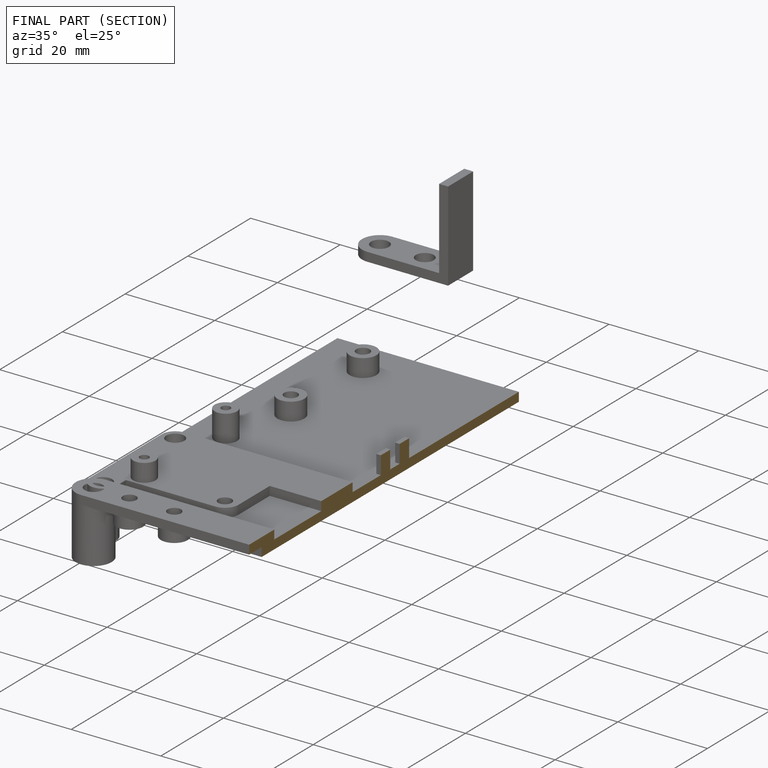
[diagram: finished part — half-section view (interior)]
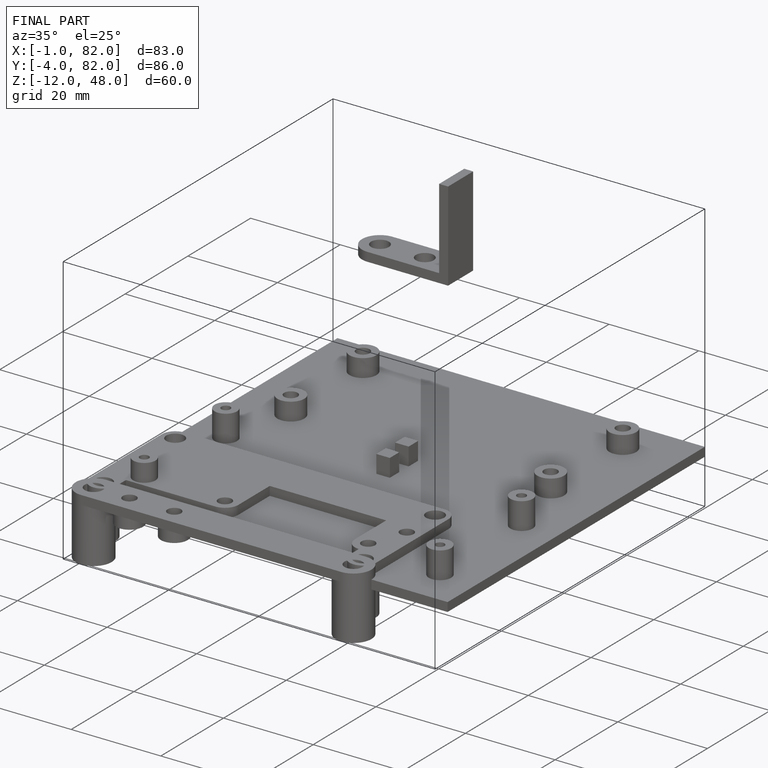
[diagram: finished part — iso view with bounding-box wireframe]
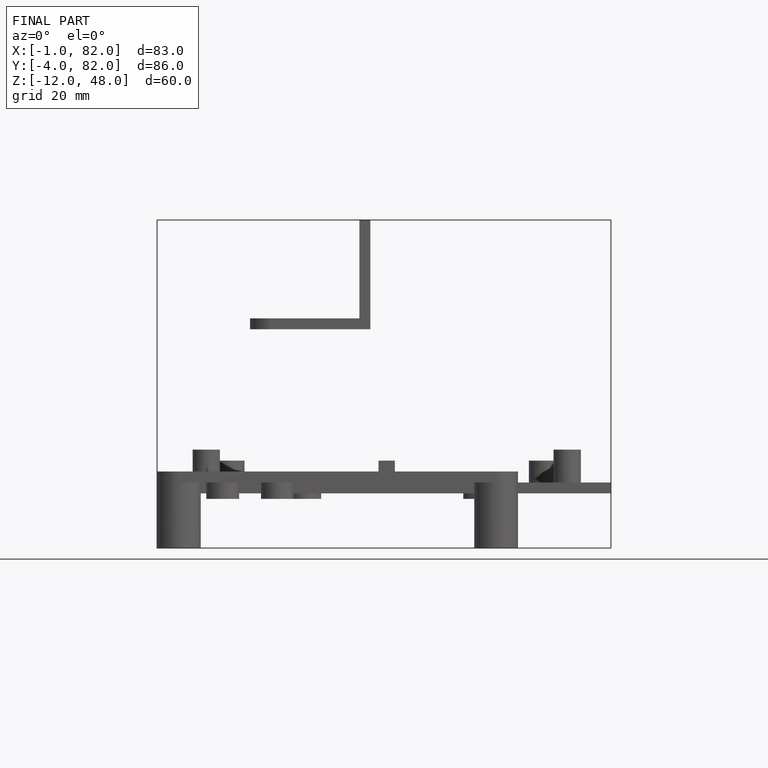
[diagram: finished part — front view with bounding-box wireframe]
